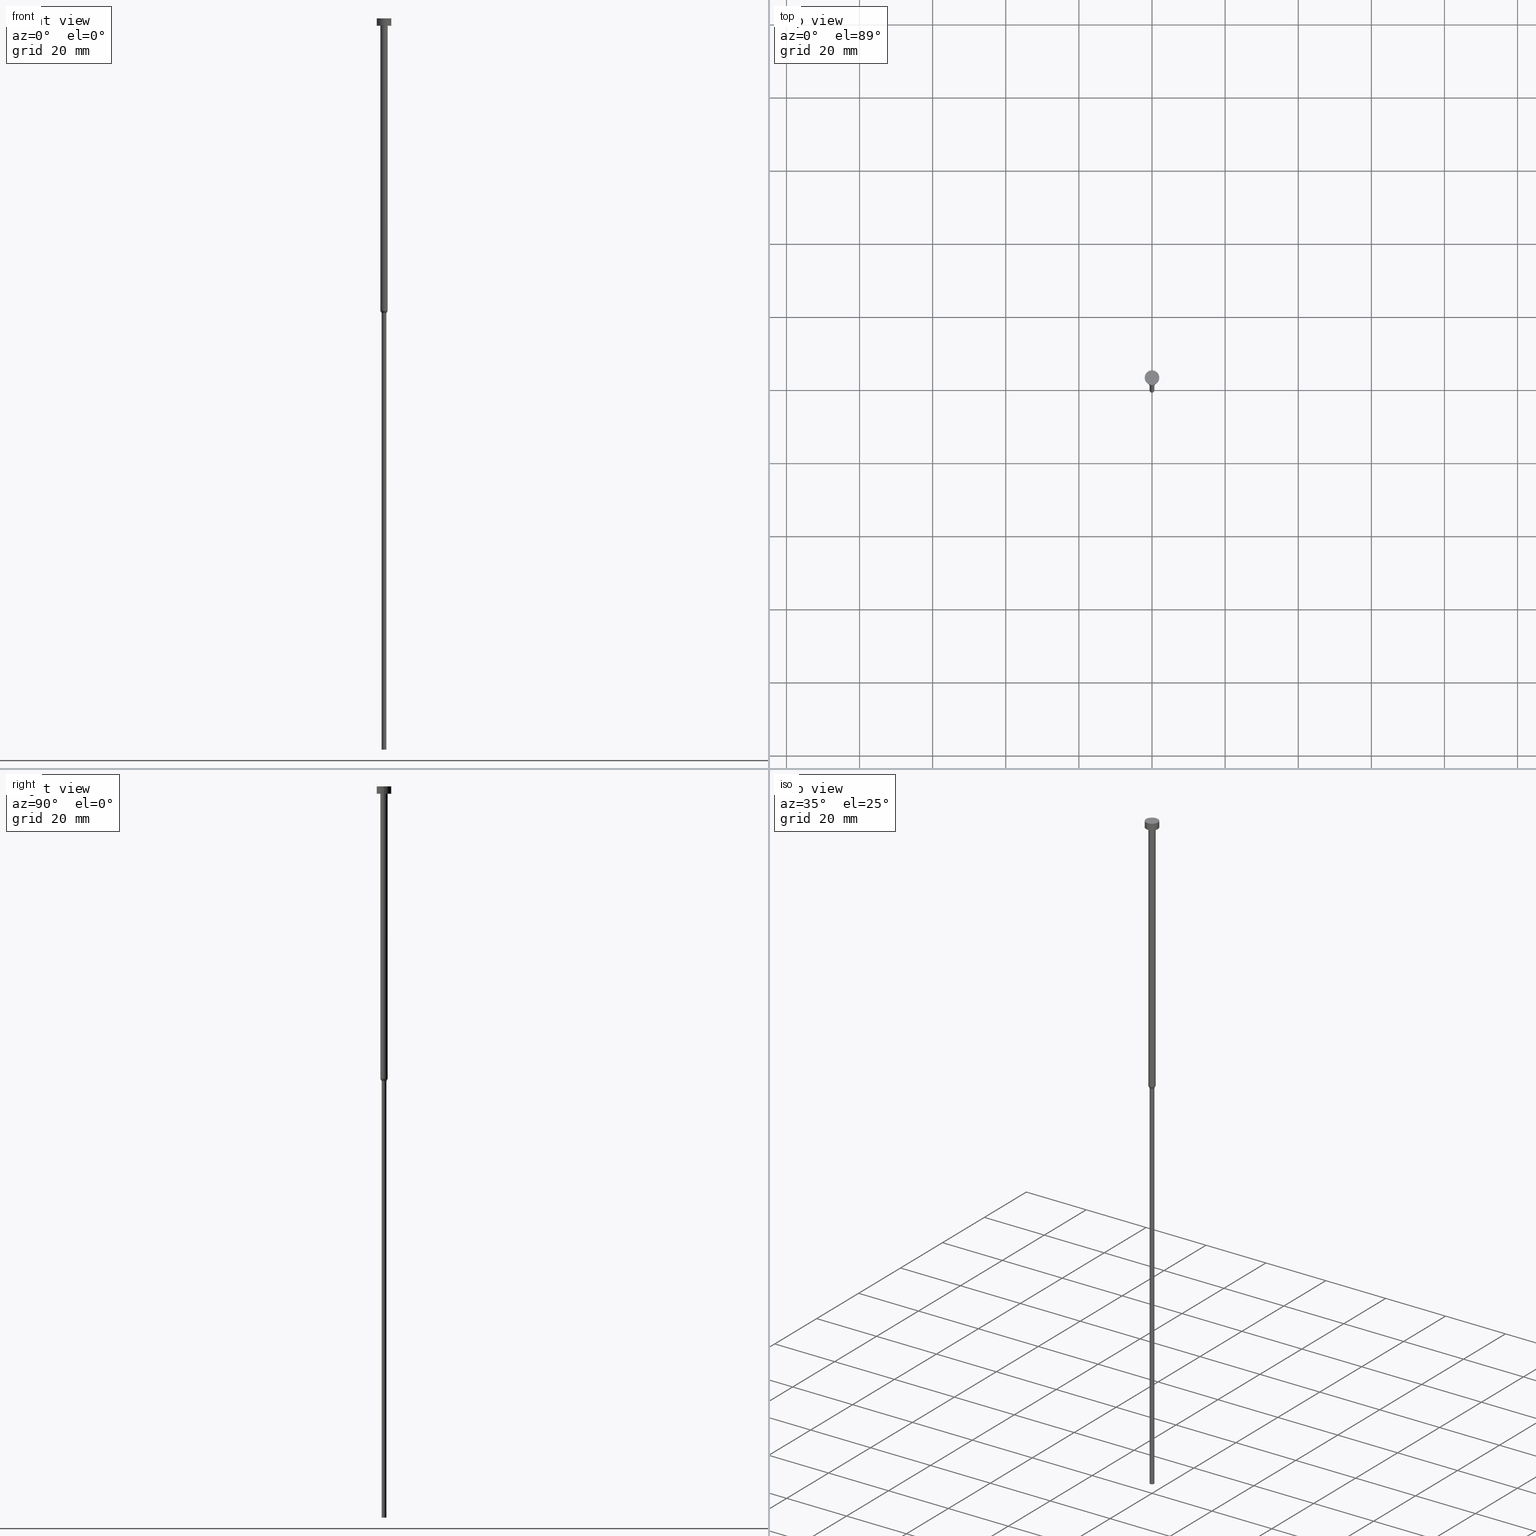
[diagram: canonical four-view strip — front | top / right | iso, engineering-drawing reading convention]
A machine part, canonical four-view strip (front | top / right | iso — engineering-drawing reading convention). The complete STEP part file that produces these views, byte-faithful:
ISO-10303-21;
HEADER;
FILE_DESCRIPTION (( 'STEP AP203' ),
    '1' );
FILE_NAME ('0a08.STEP',
    '2023-02-13T11:49:15',
    ( '' ),
    ( '' ),
    'SwSTEP 2.0',
    'SolidWorks 2019',
    '' );
FILE_SCHEMA (( 'CONFIG_CONTROL_DESIGN' ));
ENDSEC;

DATA;
#1 = VERTEX_POINT ( 'NONE', #144 ) ;
#2 = CARTESIAN_POINT ( 'NONE',  ( -2.000000000000000000, 2.449293598294706414E-16, -2.000000000000000444 ) ) ;
#3 = EDGE_CURVE ( 'NONE', #112, #38, #30, .T. ) ;
#4 = ORIENTED_EDGE ( 'NONE', *, *, #129, .T. ) ;
#5 = APPROVAL ( #67, 'NEUR�EN�' ) ;
#6 = VERTEX_POINT ( 'NONE', #277 ) ;
#7 = APPROVAL_STATUS ( 'not_yet_approved' ) ;
#8 = ORIENTED_EDGE ( 'NONE', *, *, #21, .F. ) ;
#9 = DATE_AND_TIME ( #157, #243 ) ;
#10 = DIRECTION ( 'NONE',  ( -1.000000000000000000, 0.000000000000000000, -0.000000000000000000 ) ) ;
#11 = CC_DESIGN_APPROVAL ( #102, ( #164 ) ) ;
#12 = APPROVAL ( #306, 'NEUR�EN�' ) ;
#13 = COORDINATED_UNIVERSAL_TIME_OFFSET ( 1, 0, .AHEAD. ) ;
#14 = SECURITY_CLASSIFICATION_LEVEL ( 'unclassified' ) ;
#15 = FACE_OUTER_BOUND ( 'NONE', #120, .T. ) ;
#16 = ADVANCED_FACE ( 'NONE', ( #301 ), #239, .T. ) ;
#17 = COORDINATED_UNIVERSAL_TIME_OFFSET ( 1, 0, .AHEAD. ) ;
#18 = CC_DESIGN_SECURITY_CLASSIFICATION ( #275, ( #304 ) ) ;
#19 = DIRECTION ( 'NONE',  ( 0.000000000000000000, 0.000000000000000000, -1.000000000000000000 ) ) ;
#20 = CIRCLE ( 'NONE', #337, 2.000000000000000000 ) ;
#21 = EDGE_CURVE ( 'NONE', #332, #308, #20, .T. ) ;
#22 = DIRECTION ( 'NONE',  ( -0.000000000000000000, -0.000000000000000000, 1.000000000000000000 ) ) ;
#23 = DIRECTION ( 'NONE',  ( 1.000000000000000000, 0.000000000000000000, 0.000000000000000000 ) ) ;
#24 = DIRECTION ( 'NONE',  ( 1.000000000000000000, 0.000000000000000000, 0.000000000000000000 ) ) ;
#25 = APPLICATION_CONTEXT ( 'configuration controlled 3d designs of mechanical parts and assemblies' ) ;
#26 = LINE ( 'NONE', #250, #78 ) ;
#27 = CARTESIAN_POINT ( 'NONE',  ( 0.000000000000000000, 0.000000000000000000, 0.000000000000000000 ) ) ;
#28 = CIRCLE ( 'NONE', #194, 0.6500000000000000222 ) ;
#29 = LINE ( 'NONE', #307, #135 ) ;
#30 = LINE ( 'NONE', #248, #234 ) ;
#31 = ADVANCED_FACE ( 'NONE', ( #282 ), #219, .T. ) ;
#32 = ORIENTED_EDGE ( 'NONE', *, *, #336, .F. ) ;
#33 = ORIENTED_EDGE ( 'NONE', *, *, #134, .F. ) ;
#34 = CIRCLE ( 'NONE', #180, 2.000000000000000000 ) ;
#35 = ORIENTED_EDGE ( 'NONE', *, *, #87, .F. ) ;
#36 = AXIS2_PLACEMENT_3D ( 'NONE', #326, #90, #110 ) ;
#37 = CC_DESIGN_DATE_AND_TIME_ASSIGNMENT ( #159, #266, ( #164 ) ) ;
#38 = VERTEX_POINT ( 'NONE', #174 ) ;
#39 = COORDINATED_UNIVERSAL_TIME_OFFSET ( 1, 0, .AHEAD. ) ;
#40 = CARTESIAN_POINT ( 'NONE',  ( -1.000000000000003109, 1.224646799147356905E-16, -80.00000000000000000 ) ) ;
#41 = APPLICATION_CONTEXT ( 'configuration controlled 3d designs of mechanical parts and assemblies' ) ;
#42 = VECTOR ( 'NONE', #130, 1000.000000000000114 ) ;
#43 = DIRECTION ( 'NONE',  ( 1.000000000000000000, 0.000000000000000000, 0.000000000000000000 ) ) ;
#44 = CIRCLE ( 'NONE', #247, 1.000000000000003109 ) ;
#45 = CARTESIAN_POINT ( 'NONE',  ( 0.000000000000000000, 0.000000000000000000, -1.224646799147352961E-16 ) ) ;
#46 = UNCERTAINTY_MEASURE_WITH_UNIT (LENGTH_MEASURE( 1.000000000000000082E-05 ), #223, 'distance_accuracy_value', 'NONE');
#47 = AXIS2_PLACEMENT_3D ( 'NONE', #45, #295, #43 ) ;
#48 = PLANE ( 'NONE',  #281 ) ;
#49 = CYLINDRICAL_SURFACE ( 'NONE', #305, 0.6500000000000000222 ) ;
#50 = CC_DESIGN_PERSON_AND_ORGANIZATION_ASSIGNMENT ( #70, #268, ( #304 ) ) ;
#51 = APPROVAL_PERSON_ORGANIZATION ( #354, #5, #126 ) ;
#52 = ORIENTED_EDGE ( 'NONE', *, *, #167, .F. ) ;
#53 = CARTESIAN_POINT ( 'NONE',  ( 0.000000000000000000, 0.000000000000000000, -2.000000000000000444 ) ) ;
#54 = EDGE_CURVE ( 'NONE', #117, #6, #192, .T. ) ;
#55 = DIRECTION ( 'NONE',  ( -0.000000000000000000, -0.000000000000000000, 1.000000000000000000 ) ) ;
#56 = CARTESIAN_POINT ( 'NONE',  ( 0.000000000000000000, 0.000000000000000000, -80.00000000000000000 ) ) ;
#57 = ORIENTED_EDGE ( 'NONE', *, *, #160, .T. ) ;
#58 = PERSON ( 'NEUR�EN�', 'NEUR�EN�', 'NEUR�EN�', ('NEUR�EN�'), ('NEUR�EN�'), ('NEUR�EN�') ) ;
#59 = APPROVAL_ROLE ( '' ) ;
#60 = DIRECTION ( 'NONE',  ( -0.000000000000000000, -0.000000000000000000, 1.000000000000000000 ) ) ;
#61 = EDGE_LOOP ( 'NONE', ( #154, #57, #197, #8 ) ) ;
#62 = EDGE_CURVE ( 'NONE', #348, #6, #29, .T. ) ;
#63 = DIRECTION ( 'NONE',  ( 0.5000000000000049960, 0.000000000000000000, 0.8660254037844358210 ) ) ;
#64 = AXIS2_PLACEMENT_3D ( 'NONE', #342, #104, #103 ) ;
#65 = ORIENTED_EDGE ( 'NONE', *, *, #167, .T. ) ;
#66 = DIRECTION ( 'NONE',  ( 1.000000000000000000, 0.000000000000000000, 0.000000000000000000 ) ) ;
#67 = APPROVAL_STATUS ( 'not_yet_approved' ) ;
#68 = CC_DESIGN_PERSON_AND_ORGANIZATION_ASSIGNMENT ( #338, #341, ( #304 ) ) ;
#69 = AXIS2_PLACEMENT_3D ( 'NONE', #82, #55, #172 ) ;
#70 = PERSON_AND_ORGANIZATION ( #58, #127 ) ;
#71 = CIRCLE ( 'NONE', #190, 0.6500000000000000222 ) ;
#72 = DIRECTION ( 'NONE',  ( 1.000000000000000000, 0.000000000000000000, 0.000000000000000000 ) ) ;
#73 = FACE_OUTER_BOUND ( 'NONE', #125, .T. ) ;
#74 = CARTESIAN_POINT ( 'NONE',  ( 0.000000000000000000, 0.000000000000000000, -2.449293598294705921E-16 ) ) ;
#75 = CIRCLE ( 'NONE', #252, 1.000000000000003109 ) ;
#76 = CARTESIAN_POINT ( 'NONE',  ( 2.000000000000000000, 0.000000000000000000, 0.000000000000000000 ) ) ;
#77 = ADVANCED_BREP_SHAPE_REPRESENTATION ( '0a08', ( #254, #291 ), #146 ) ;
#78 = VECTOR ( 'NONE', #147, 1000.000000000000000 ) ;
#79 = DIRECTION ( 'NONE',  ( 1.000000000000000000, 0.000000000000000000, 0.000000000000000000 ) ) ;
#80 = ORIENTED_EDGE ( 'NONE', *, *, #188, .F. ) ;
#81 = CC_DESIGN_APPROVAL ( #5, ( #275 ) ) ;
#82 = CARTESIAN_POINT ( 'NONE',  ( 0.000000000000000000, 0.000000000000000000, -200.0000000000000000 ) ) ;
#83 = CIRCLE ( 'NONE', #69, 0.6500000000000000222 ) ;
#84 = ORIENTED_EDGE ( 'NONE', *, *, #188, .T. ) ;
#85 = DATE_AND_TIME ( #323, #262 ) ;
#86 = EDGE_LOOP ( 'NONE', ( #230, #92, #280, #142 ) ) ;
#87 = EDGE_CURVE ( 'NONE', #112, #1, #83, .T. ) ;
#88 = APPLICATION_PROTOCOL_DEFINITION ( 'international standard', 'config_control_design', 1994, #41 ) ;
#89 = AXIS2_PLACEMENT_3D ( 'NONE', #111, #347, #109 ) ;
#90 = DIRECTION ( 'NONE',  ( -0.000000000000000000, -0.000000000000000000, 1.000000000000000000 ) ) ;
#91 = PRODUCT_DEFINITION_SHAPE ( 'NONE', 'NONE',  #164 ) ;
#92 = ORIENTED_EDGE ( 'NONE', *, *, #321, .T. ) ;
#93 = ORIENTED_EDGE ( 'NONE', *, *, #139, .T. ) ;
#94 = APPLICATION_PROTOCOL_DEFINITION ( 'international standard', 'config_control_design', 1994, #25 ) ;
#95 = ORIENTED_EDGE ( 'NONE', *, *, #54, .T. ) ;
#96 = FACE_OUTER_BOUND ( 'NONE', #193, .T. ) ;
#97 = AXIS2_PLACEMENT_3D ( 'NONE', #140, #315, #79 ) ;
#98 = ORIENTED_EDGE ( 'NONE', *, *, #87, .T. ) ;
#99 = PERSON_AND_ORGANIZATION ( #58, #127 ) ;
#100 = DIRECTION ( 'NONE',  ( -0.000000000000000000, -0.000000000000000000, 1.000000000000000000 ) ) ;
#101 = EDGE_CURVE ( 'NONE', #156, #209, #273, .T. ) ;
#102 = APPROVAL ( #7, 'NEUR�EN�' ) ;
#103 = DIRECTION ( 'NONE',  ( 1.000000000000000000, 0.000000000000000000, 0.000000000000000000 ) ) ;
#104 = DIRECTION ( 'NONE',  ( -0.000000000000000000, -0.000000000000000000, 1.000000000000000000 ) ) ;
#105 = CIRCLE ( 'NONE', #138, 0.6500000000000000222 ) ;
#106 = DIRECTION ( 'NONE',  ( 1.000000000000000000, 0.000000000000000000, 0.000000000000000000 ) ) ;
#107 = CARTESIAN_POINT ( 'NONE',  ( -2.000000000000000000, 2.449293598294706414E-16, 0.000000000000000000 ) ) ;
#108 = CARTESIAN_POINT ( 'NONE',  ( 1.000000000000003109, 0.000000000000000000, -80.00000000000000000 ) ) ;
#109 = DIRECTION ( 'NONE',  ( 1.000000000000000000, 0.000000000000000000, 0.000000000000000000 ) ) ;
#110 = DIRECTION ( 'NONE',  ( 1.000000000000000000, 0.000000000000000000, 0.000000000000000000 ) ) ;
#111 = CARTESIAN_POINT ( 'NONE',  ( 0.000000000000000000, 0.000000000000000000, -2.000000000000000444 ) ) ;
#112 = VERTEX_POINT ( 'NONE', #278 ) ;
#113 = AXIS2_PLACEMENT_3D ( 'NONE', #171, #60, #178 ) ;
#114 = EDGE_CURVE ( 'NONE', #330, #117, #26, .T. ) ;
#115 = DIRECTION ( 'NONE',  ( -0.000000000000000000, -0.000000000000000000, 1.000000000000000000 ) ) ;
#116 = ORIENTED_EDGE ( 'NONE', *, *, #101, .T. ) ;
#117 = VERTEX_POINT ( 'NONE', #257 ) ;
#118 = LINE ( 'NONE', #76, #298 ) ;
#119 = AXIS2_PLACEMENT_3D ( 'NONE', #185, #170, #23 ) ;
#120 = EDGE_LOOP ( 'NONE', ( #98, #259, #80, #201 ) ) ;
#121 =( NAMED_UNIT ( * ) PLANE_ANGLE_UNIT ( ) SI_UNIT ( $, .RADIAN. ) );
#122 = PLANE ( 'NONE',  #222 ) ;
#123 = EDGE_LOOP ( 'NONE', ( #84, #93, #334, #33 ) ) ;
#124 = CC_DESIGN_PERSON_AND_ORGANIZATION_ASSIGNMENT ( #286, #155, ( #208 ) ) ;
#125 = EDGE_LOOP ( 'NONE', ( #227, #310 ) ) ;
#126 = APPROVAL_ROLE ( '' ) ;
#127 = ORGANIZATION ( 'NEUR�EN�', 'NEUR�EN�', '' ) ;
#128 = DIRECTION ( 'NONE',  ( 1.000000000000000000, 0.000000000000000000, 0.000000000000000000 ) ) ;
#129 = EDGE_CURVE ( 'NONE', #348, #330, #44, .T. ) ;
#130 = DIRECTION ( 'NONE',  ( -0.5000000000000049960, 6.123233995736827666E-17, 0.8660254037844358210 ) ) ;
#131 = DIRECTION ( 'NONE',  ( -0.000000000000000000, -0.000000000000000000, 1.000000000000000000 ) ) ;
#132 = CC_DESIGN_PERSON_AND_ORGANIZATION_ASSIGNMENT ( #232, #148, ( #275 ) ) ;
#133 = FACE_OUTER_BOUND ( 'NONE', #258, .T. ) ;
#134 = EDGE_CURVE ( 'NONE', #38, #330, #260, .T. ) ;
#135 = VECTOR ( 'NONE', #221, 1000.000000000000000 ) ;
#136 = CARTESIAN_POINT ( 'NONE',  ( -2.000000000000000000, 2.449293598294706414E-16, -2.449293598294705921E-16 ) ) ;
#137 = FACE_OUTER_BOUND ( 'NONE', #237, .T. ) ;
#138 = AXIS2_PLACEMENT_3D ( 'NONE', #309, #100, #179 ) ;
#139 = EDGE_CURVE ( 'NONE', #153, #348, #207, .T. ) ;
#140 = CARTESIAN_POINT ( 'NONE',  ( 0.000000000000000000, 0.000000000000000000, 0.000000000000000000 ) ) ;
#141 = CARTESIAN_POINT ( 'NONE',  ( -0.6500000000000000222, 7.960204194457795477E-17, -80.60621778264911086 ) ) ;
#142 = ORIENTED_EDGE ( 'NONE', *, *, #129, .F. ) ;
#143 = DIRECTION ( 'NONE',  ( 1.000000000000000000, 0.000000000000000000, 0.000000000000000000 ) ) ;
#144 = CARTESIAN_POINT ( 'NONE',  ( -0.6500000000000000222, 7.960204194457795477E-17, -200.0000000000000000 ) ) ;
#145 = ADVANCED_FACE ( 'NONE', ( #340 ), #212, .T. ) ;
#146 =( GEOMETRIC_REPRESENTATION_CONTEXT ( 3 ) GLOBAL_UNCERTAINTY_ASSIGNED_CONTEXT ( ( #46 ) ) GLOBAL_UNIT_ASSIGNED_CONTEXT ( ( #223, #121, #233 ) ) REPRESENTATION_CONTEXT ( 'NONE', 'WORKASPACE' ) );
#147 = DIRECTION ( 'NONE',  ( -0.000000000000000000, -0.000000000000000000, 1.000000000000000000 ) ) ;
#148 = PERSON_AND_ORGANIZATION_ROLE ( 'classification_officer' ) ;
#149 = ORIENTED_EDGE ( 'NONE', *, *, #62, .F. ) ;
#150 = EDGE_LOOP ( 'NONE', ( #35, #203 ) ) ;
#151 = DIRECTION ( 'NONE',  ( 0.000000000000000000, 0.000000000000000000, 1.000000000000000000 ) ) ;
#152 = DIRECTION ( 'NONE',  ( -0.000000000000000000, -0.000000000000000000, 1.000000000000000000 ) ) ;
#153 = VERTEX_POINT ( 'NONE', #141 ) ;
#154 = ORIENTED_EDGE ( 'NONE', *, *, #349, .F. ) ;
#155 = PERSON_AND_ORGANIZATION_ROLE ( 'design_owner' ) ;
#156 = VERTEX_POINT ( 'NONE', #319 ) ;
#157 = CALENDAR_DATE ( 2023, 13, 2 ) ;
#158 = DIRECTION ( 'NONE',  ( -0.000000000000000000, -0.000000000000000000, 1.000000000000000000 ) ) ;
#159 = DATE_AND_TIME ( #290, #218 ) ;
#160 = EDGE_CURVE ( 'NONE', #209, #156, #246, .T. ) ;
#161 = APPROVAL_PERSON_ORGANIZATION ( #325, #12, #59 ) ;
#162 = AXIS2_PLACEMENT_3D ( 'NONE', #339, #158, #66 ) ;
#163 = DIRECTION ( 'NONE',  ( -0.000000000000000000, -0.000000000000000000, 1.000000000000000000 ) ) ;
#164 = PRODUCT_DEFINITION ( 'NEZN�M�', '', #304, #333 ) ;
#165 = CARTESIAN_POINT ( 'NONE',  ( 1.000000000000003109, 0.000000000000000000, -80.00000000000000000 ) ) ;
#166 = CARTESIAN_POINT ( 'NONE',  ( 0.000000000000000000, -2.000000000000000000, -2.000000000000000444 ) ) ;
#167 = EDGE_CURVE ( 'NONE', #6, #117, #351, .T. ) ;
#168 = APPROVAL_PERSON_ORGANIZATION ( #263, #102, #265 ) ;
#169 = CC_DESIGN_DATE_AND_TIME_ASSIGNMENT ( #327, #211, ( #275 ) ) ;
#170 = DIRECTION ( 'NONE',  ( -0.000000000000000000, -0.000000000000000000, 1.000000000000000000 ) ) ;
#171 = CARTESIAN_POINT ( 'NONE',  ( 0.000000000000000000, 0.000000000000000000, -2.000000000000000444 ) ) ;
#172 = DIRECTION ( 'NONE',  ( 1.000000000000000000, 0.000000000000000000, 0.000000000000000000 ) ) ;
#173 = ADVANCED_FACE ( 'NONE', ( #350 ), #279, .T. ) ;
#174 = CARTESIAN_POINT ( 'NONE',  ( 0.6500000000000000222, 0.000000000000000000, -80.60621778264911086 ) ) ;
#175 = VECTOR ( 'NONE', #274, 1000.000000000000000 ) ;
#176 = DIRECTION ( 'NONE',  ( -0.000000000000000000, -0.000000000000000000, 1.000000000000000000 ) ) ;
#177 = DIRECTION ( 'NONE',  ( 0.000000000000000000, 0.000000000000000000, -1.000000000000000000 ) ) ;
#178 = DIRECTION ( 'NONE',  ( 1.000000000000000000, 0.000000000000000000, 0.000000000000000000 ) ) ;
#179 = DIRECTION ( 'NONE',  ( 1.000000000000000000, 0.000000000000000000, 0.000000000000000000 ) ) ;
#180 = AXIS2_PLACEMENT_3D ( 'NONE', #74, #22, #189 ) ;
#181 = ORIENTED_EDGE ( 'NONE', *, *, #160, .F. ) ;
#182 = DIRECTION ( 'NONE',  ( 1.000000000000000000, 0.000000000000000000, 0.000000000000000000 ) ) ;
#183 = CARTESIAN_POINT ( 'NONE',  ( 0.000000000000000000, 0.000000000000000000, -200.0000000000000000 ) ) ;
#184 = COORDINATED_UNIVERSAL_TIME_OFFSET ( 1, 0, .AHEAD. ) ;
#185 = CARTESIAN_POINT ( 'NONE',  ( 0.000000000000000000, 0.000000000000000000, 0.000000000000000000 ) ) ;
#186 = DIRECTION ( 'NONE',  ( 1.000000000000000000, 0.000000000000000000, 0.000000000000000000 ) ) ;
#187 = DIRECTION ( 'NONE',  ( 1.000000000000000000, 0.000000000000000000, 0.000000000000000000 ) ) ;
#188 = EDGE_CURVE ( 'NONE', #38, #153, #105, .T. ) ;
#189 = DIRECTION ( 'NONE',  ( 1.000000000000000000, 0.000000000000000000, 0.000000000000000000 ) ) ;
#190 = AXIS2_PLACEMENT_3D ( 'NONE', #240, #163, #72 ) ;
#191 = DIRECTION ( 'NONE',  ( -0.000000000000000000, -0.000000000000000000, 1.000000000000000000 ) ) ;
#192 = CIRCLE ( 'NONE', #36, 1.000000000000003553 ) ;
#193 = EDGE_LOOP ( 'NONE', ( #149, #4, #264, #52 ) ) ;
#194 = AXIS2_PLACEMENT_3D ( 'NONE', #312, #131, #106 ) ;
#195 = ADVANCED_FACE ( 'NONE', ( #96 ), #289, .T. ) ;
#196 = ORIENTED_EDGE ( 'NONE', *, *, #349, .T. ) ;
#197 = ORIENTED_EDGE ( 'NONE', *, *, #214, .T. ) ;
#198 = APPROVAL_DATE_TIME ( #85, #5 ) ;
#199 = DIRECTION ( 'NONE',  ( 1.000000000000000000, 0.000000000000000000, 0.000000000000000000 ) ) ;
#200 = VECTOR ( 'NONE', #63, 1000.000000000000114 ) ;
#201 = ORIENTED_EDGE ( 'NONE', *, *, #3, .F. ) ;
#202 = AXIS2_PLACEMENT_3D ( 'NONE', #56, #152, #229 ) ;
#203 = ORIENTED_EDGE ( 'NONE', *, *, #302, .F. ) ;
#204 = ORIENTED_EDGE ( 'NONE', *, *, #321, .F. ) ;
#205 = AXIS2_PLACEMENT_3D ( 'NONE', #53, #224, #143 ) ;
#206 = ADVANCED_FACE ( 'NONE', ( #285 ), #122, .T. ) ;
#207 = LINE ( 'NONE', #40, #42 ) ;
#208 = PRODUCT ( '0a08', '0a08', '', ( #288 ) ) ;
#209 = VERTEX_POINT ( 'NONE', #2 ) ;
#210 = PERSON_AND_ORGANIZATION_ROLE ( 'creator' ) ;
#211 = DATE_TIME_ROLE ( 'classification_date' ) ;
#212 = CYLINDRICAL_SURFACE ( 'NONE', #119, 2.000000000000000000 ) ;
#213 = LOCAL_TIME ( 12, 49, 15.00000000000000000, #251 ) ;
#214 = EDGE_CURVE ( 'NONE', #156, #308, #118, .T. ) ;
#215 = DIRECTION ( 'NONE',  ( -0.000000000000000000, -0.000000000000000000, 1.000000000000000000 ) ) ;
#216 = CARTESIAN_POINT ( 'NONE',  ( 2.000000000000000000, 0.000000000000000000, -2.449293598294705921E-16 ) ) ;
#217 = ADVANCED_FACE ( 'NONE', ( #73 ), #313, .T. ) ;
#218 = LOCAL_TIME ( 12, 49, 15.00000000000000000, #184 ) ;
#219 = CONICAL_SURFACE ( 'NONE', #202, 1.000000000000003109, 0.5235987755983045888 ) ;
#220 = ORIENTED_EDGE ( 'NONE', *, *, #297, .T. ) ;
#221 = DIRECTION ( 'NONE',  ( -0.000000000000000000, -0.000000000000000000, 1.000000000000000000 ) ) ;
#222 = AXIS2_PLACEMENT_3D ( 'NONE', #183, #177, #10 ) ;
#223 =( LENGTH_UNIT ( ) NAMED_UNIT ( * ) SI_UNIT ( .MILLI., .METRE. ) );
#224 = DIRECTION ( 'NONE',  ( -0.000000000000000000, -0.000000000000000000, 1.000000000000000000 ) ) ;
#225 = EDGE_LOOP ( 'NONE', ( #116, #196, #235, #352 ) ) ;
#226 = CALENDAR_DATE ( 2023, 13, 2 ) ;
#227 = ORIENTED_EDGE ( 'NONE', *, *, #331, .T. ) ;
#228 = CARTESIAN_POINT ( 'NONE',  ( 0.000000000000000000, 0.000000000000000000, 0.000000000000000000 ) ) ;
#229 = DIRECTION ( 'NONE',  ( 1.000000000000000000, 0.000000000000000000, 0.000000000000000000 ) ) ;
#230 = ORIENTED_EDGE ( 'NONE', *, *, #139, .F. ) ;
#231 = CC_DESIGN_APPROVAL ( #12, ( #304 ) ) ;
#232 = PERSON_AND_ORGANIZATION ( #58, #127 ) ;
#233 =( NAMED_UNIT ( * ) SI_UNIT ( $, .STERADIAN. ) SOLID_ANGLE_UNIT ( ) );
#234 = VECTOR ( 'NONE', #115, 1000.000000000000000 ) ;
#235 = ORIENTED_EDGE ( 'NONE', *, *, #331, .F. ) ;
#236 = CC_DESIGN_PERSON_AND_ORGANIZATION_ASSIGNMENT ( #99, #210, ( #164 ) ) ;
#237 = EDGE_LOOP ( 'NONE', ( #32, #329, #287, #204 ) ) ;
#238 = SHAPE_DEFINITION_REPRESENTATION ( #91, #77 ) ;
#239 = CONICAL_SURFACE ( 'NONE', #296, 1.000000000000003109, 0.5235987755983045888 ) ;
#240 = CARTESIAN_POINT ( 'NONE',  ( 0.000000000000000000, 0.000000000000000000, -80.60621778264911086 ) ) ;
#241 = APPROVAL_DATE_TIME ( #244, #12 ) ;
#242 = CYLINDRICAL_SURFACE ( 'NONE', #64, 1.000000000000003331 ) ;
#243 = LOCAL_TIME ( 12, 49, 15.00000000000000000, #39 ) ;
#244 = DATE_AND_TIME ( #269, #328 ) ;
#245 = CARTESIAN_POINT ( 'NONE',  ( 0.000000000000000000, 0.000000000000000000, 0.000000000000000000 ) ) ;
#246 = CIRCLE ( 'NONE', #89, 2.000000000000000000 ) ;
#247 = AXIS2_PLACEMENT_3D ( 'NONE', #283, #353, #24 ) ;
#248 = CARTESIAN_POINT ( 'NONE',  ( 0.6500000000000000222, 0.000000000000000000, 0.000000000000000000 ) ) ;
#249 = ADVANCED_FACE ( 'NONE', ( #15 ), #49, .T. ) ;
#250 = CARTESIAN_POINT ( 'NONE',  ( 1.000000000000003331, 0.000000000000000000, 0.000000000000000000 ) ) ;
#251 = COORDINATED_UNIVERSAL_TIME_OFFSET ( 1, 0, .AHEAD. ) ;
#252 = AXIS2_PLACEMENT_3D ( 'NONE', #270, #292, #187 ) ;
#253 = PRODUCT_RELATED_PRODUCT_CATEGORY ( 'detail', '', ( #208 ) ) ;
#254 = MANIFOLD_SOLID_BREP ( 'Rotovat1', #343 ) ;
#255 = CARTESIAN_POINT ( 'NONE',  ( -1.000000000000003109, 1.224646799147356905E-16, -80.00000000000000000 ) ) ;
#256 = DIRECTION ( 'NONE',  ( -0.000000000000000000, -0.000000000000000000, 1.000000000000000000 ) ) ;
#257 = CARTESIAN_POINT ( 'NONE',  ( 1.000000000000003553, 0.000000000000000000, -2.000000000000000444 ) ) ;
#258 = EDGE_LOOP ( 'NONE', ( #220, #300, #322, #284 ) ) ;
#259 = ORIENTED_EDGE ( 'NONE', *, *, #336, .T. ) ;
#260 = LINE ( 'NONE', #108, #200 ) ;
#261 = EDGE_LOOP ( 'NONE', ( #317, #181 ) ) ;
#262 = LOCAL_TIME ( 12, 49, 15.00000000000000000, #13 ) ;
#263 = PERSON_AND_ORGANIZATION ( #58, #127 ) ;
#264 = ORIENTED_EDGE ( 'NONE', *, *, #114, .T. ) ;
#265 = APPROVAL_ROLE ( '' ) ;
#266 = DATE_TIME_ROLE ( 'creation_date' ) ;
#267 = AXIS2_PLACEMENT_3D ( 'NONE', #27, #256, #128 ) ;
#268 = PERSON_AND_ORGANIZATION_ROLE ( 'design_supplier' ) ;
#269 = CALENDAR_DATE ( 2023, 13, 2 ) ;
#270 = CARTESIAN_POINT ( 'NONE',  ( 0.000000000000000000, 0.000000000000000000, -80.00000000000000000 ) ) ;
#271 = VECTOR ( 'NONE', #318, 1000.000000000000000 ) ;
#272 = CARTESIAN_POINT ( 'NONE',  ( -0.6500000000000000222, 7.960204194457795477E-17, 0.000000000000000000 ) ) ;
#273 = CIRCLE ( 'NONE', #113, 2.000000000000000000 ) ;
#274 = DIRECTION ( 'NONE',  ( -0.000000000000000000, -0.000000000000000000, 1.000000000000000000 ) ) ;
#275 = SECURITY_CLASSIFICATION ( '', '', #14 ) ;
#276 = ADVANCED_FACE ( 'NONE', ( #133 ), #242, .T. ) ;
#277 = CARTESIAN_POINT ( 'NONE',  ( -1.000000000000003553, 1.224646799147357398E-16, -2.000000000000000444 ) ) ;
#278 = CARTESIAN_POINT ( 'NONE',  ( 0.6500000000000000222, 0.000000000000000000, -200.0000000000000000 ) ) ;
#279 = CYLINDRICAL_SURFACE ( 'NONE', #267, 2.000000000000000000 ) ;
#280 = ORIENTED_EDGE ( 'NONE', *, *, #134, .T. ) ;
#281 = AXIS2_PLACEMENT_3D ( 'NONE', #166, #19, #314 ) ;
#282 = FACE_OUTER_BOUND ( 'NONE', #123, .T. ) ;
#283 = CARTESIAN_POINT ( 'NONE',  ( 0.000000000000000000, 0.000000000000000000, -80.00000000000000000 ) ) ;
#284 = ORIENTED_EDGE ( 'NONE', *, *, #114, .F. ) ;
#285 = FACE_OUTER_BOUND ( 'NONE', #150, .T. ) ;
#286 = PERSON_AND_ORGANIZATION ( #58, #127 ) ;
#287 = ORIENTED_EDGE ( 'NONE', *, *, #3, .T. ) ;
#288 = MECHANICAL_CONTEXT ( 'NONE', #25, 'mechanical' ) ;
#289 = CYLINDRICAL_SURFACE ( 'NONE', #162, 1.000000000000003331 ) ;
#290 = CALENDAR_DATE ( 2023, 13, 2 ) ;
#291 = AXIS2_PLACEMENT_3D ( 'NONE', #228, #151, #182 ) ;
#292 = DIRECTION ( 'NONE',  ( -0.000000000000000000, -0.000000000000000000, 1.000000000000000000 ) ) ;
#293 = FACE_BOUND ( 'NONE', #324, .T. ) ;
#294 = LINE ( 'NONE', #272, #175 ) ;
#295 = DIRECTION ( 'NONE',  ( 0.000000000000000000, -0.000000000000000000, 1.000000000000000000 ) ) ;
#296 = AXIS2_PLACEMENT_3D ( 'NONE', #355, #303, #199 ) ;
#297 = EDGE_CURVE ( 'NONE', #330, #348, #75, .T. ) ;
#298 = VECTOR ( 'NONE', #191, 1000.000000000000000 ) ;
#299 = DIRECTION ( 'NONE',  ( 1.000000000000000000, 0.000000000000000000, 0.000000000000000000 ) ) ;
#300 = ORIENTED_EDGE ( 'NONE', *, *, #62, .T. ) ;
#301 = FACE_OUTER_BOUND ( 'NONE', #86, .T. ) ;
#302 = EDGE_CURVE ( 'NONE', #1, #112, #28, .T. ) ;
#303 = DIRECTION ( 'NONE',  ( -0.000000000000000000, -0.000000000000000000, 1.000000000000000000 ) ) ;
#304 = PRODUCT_DEFINITION_FORMATION_WITH_SPECIFIED_SOURCE ( 'LIBOVOLN�', '', #208, .NOT_KNOWN. ) ;
#305 = AXIS2_PLACEMENT_3D ( 'NONE', #245, #215, #186 ) ;
#306 = APPROVAL_STATUS ( 'not_yet_approved' ) ;
#307 = CARTESIAN_POINT ( 'NONE',  ( -1.000000000000003331, 1.224646799147357151E-16, 0.000000000000000000 ) ) ;
#308 = VERTEX_POINT ( 'NONE', #216 ) ;
#309 = CARTESIAN_POINT ( 'NONE',  ( 0.000000000000000000, 0.000000000000000000, -80.60621778264911086 ) ) ;
#310 = ORIENTED_EDGE ( 'NONE', *, *, #21, .T. ) ;
#311 = FACE_OUTER_BOUND ( 'NONE', #261, .T. ) ;
#312 = CARTESIAN_POINT ( 'NONE',  ( 0.000000000000000000, 0.000000000000000000, -200.0000000000000000 ) ) ;
#313 = PLANE ( 'NONE',  #47 ) ;
#314 = DIRECTION ( 'NONE',  ( -1.000000000000000000, 0.000000000000000000, -0.000000000000000000 ) ) ;
#315 = DIRECTION ( 'NONE',  ( -0.000000000000000000, -0.000000000000000000, 1.000000000000000000 ) ) ;
#316 = ADVANCED_FACE ( 'NONE', ( #293, #311 ), #48, .T. ) ;
#317 = ORIENTED_EDGE ( 'NONE', *, *, #101, .F. ) ;
#318 = DIRECTION ( 'NONE',  ( -0.000000000000000000, -0.000000000000000000, 1.000000000000000000 ) ) ;
#319 = CARTESIAN_POINT ( 'NONE',  ( 2.000000000000000000, 0.000000000000000000, -2.000000000000000444 ) ) ;
#320 = CARTESIAN_POINT ( 'NONE',  ( 0.000000000000000000, 0.000000000000000000, -2.449293598294705921E-16 ) ) ;
#321 = EDGE_CURVE ( 'NONE', #153, #38, #71, .T. ) ;
#322 = ORIENTED_EDGE ( 'NONE', *, *, #54, .F. ) ;
#323 = CALENDAR_DATE ( 2023, 13, 2 ) ;
#324 = EDGE_LOOP ( 'NONE', ( #95, #65 ) ) ;
#325 = PERSON_AND_ORGANIZATION ( #58, #127 ) ;
#326 = CARTESIAN_POINT ( 'NONE',  ( 0.000000000000000000, 0.000000000000000000, -2.000000000000000444 ) ) ;
#327 = DATE_AND_TIME ( #226, #213 ) ;
#328 = LOCAL_TIME ( 12, 49, 15.00000000000000000, #17 ) ;
#329 = ORIENTED_EDGE ( 'NONE', *, *, #302, .T. ) ;
#330 = VERTEX_POINT ( 'NONE', #165 ) ;
#331 = EDGE_CURVE ( 'NONE', #308, #332, #34, .T. ) ;
#332 = VERTEX_POINT ( 'NONE', #136 ) ;
#333 = DESIGN_CONTEXT ( 'detailed design', #41, 'design' ) ;
#334 = ORIENTED_EDGE ( 'NONE', *, *, #297, .F. ) ;
#335 = APPROVAL_DATE_TIME ( #9, #102 ) ;
#336 = EDGE_CURVE ( 'NONE', #1, #153, #294, .T. ) ;
#337 = AXIS2_PLACEMENT_3D ( 'NONE', #320, #176, #299 ) ;
#338 = PERSON_AND_ORGANIZATION ( #58, #127 ) ;
#339 = CARTESIAN_POINT ( 'NONE',  ( 0.000000000000000000, 0.000000000000000000, 0.000000000000000000 ) ) ;
#340 = FACE_OUTER_BOUND ( 'NONE', #61, .T. ) ;
#341 = PERSON_AND_ORGANIZATION_ROLE ( 'creator' ) ;
#342 = CARTESIAN_POINT ( 'NONE',  ( 0.000000000000000000, 0.000000000000000000, 0.000000000000000000 ) ) ;
#343 = CLOSED_SHELL ( 'NONE', ( #173, #276, #31, #249, #206, #345, #16, #195, #316, #145, #217 ) ) ;
#344 = CYLINDRICAL_SURFACE ( 'NONE', #97, 0.6500000000000000222 ) ;
#345 = ADVANCED_FACE ( 'NONE', ( #137 ), #344, .T. ) ;
#346 = LINE ( 'NONE', #107, #271 ) ;
#347 = DIRECTION ( 'NONE',  ( -0.000000000000000000, -0.000000000000000000, 1.000000000000000000 ) ) ;
#348 = VERTEX_POINT ( 'NONE', #255 ) ;
#349 = EDGE_CURVE ( 'NONE', #209, #332, #346, .T. ) ;
#350 = FACE_OUTER_BOUND ( 'NONE', #225, .T. ) ;
#351 = CIRCLE ( 'NONE', #205, 1.000000000000003553 ) ;
#352 = ORIENTED_EDGE ( 'NONE', *, *, #214, .F. ) ;
#353 = DIRECTION ( 'NONE',  ( -0.000000000000000000, -0.000000000000000000, 1.000000000000000000 ) ) ;
#354 = PERSON_AND_ORGANIZATION ( #58, #127 ) ;
#355 = CARTESIAN_POINT ( 'NONE',  ( 0.000000000000000000, 0.000000000000000000, -80.00000000000000000 ) ) ;
ENDSEC;
END-ISO-10303-21;
